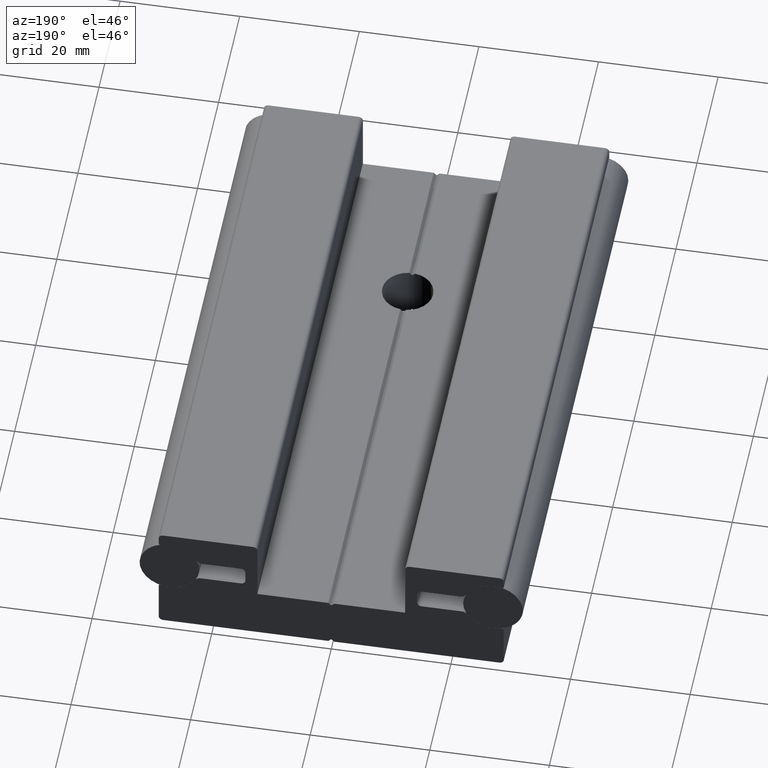
[diagram: clean part render]
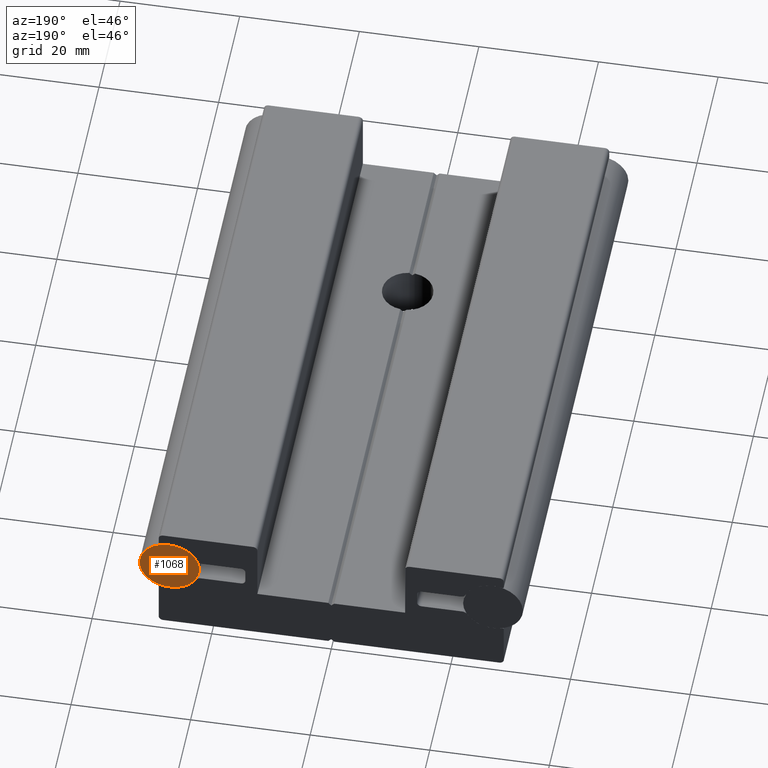
[diagram: same view with one face highlighted and labeled with its STEP entity id]
A machine part, auxiliary view. The second image highlights one B-rep face of the part: STEP entity #1068.
In plain terms, the highlighted planar face has unit normal (-0, -1, -0).
Its self-contained STEP definition (entity closure, byte-faithful):
#59=PLANE('',#1256);
#112=FACE_OUTER_BOUND('',#166,.T.);
#166=EDGE_LOOP('',(#987));
#411=CIRCLE('',#1257,5.);
#523=VERTEX_POINT('',#1910);
#678=EDGE_CURVE('',#523,#523,#411,.T.);
#987=ORIENTED_EDGE('',*,*,#678,.T.);
#1068=ADVANCED_FACE('',(#112),#59,.F.);
#1256=AXIS2_PLACEMENT_3D('',#1909,#1583,#1584);
#1257=AXIS2_PLACEMENT_3D('',#1911,#1585,#1586);
#1583=DIRECTION('center_axis',(0.,0.,1.));
#1584=DIRECTION('ref_axis',(1.,0.,0.));
#1585=DIRECTION('center_axis',(0.,0.,-1.));
#1586=DIRECTION('ref_axis',(-1.,0.,0.));
#1909=CARTESIAN_POINT('Origin',(-2.36064120735332E-16,9.25185853854297E-17,
-50.));
#1910=CARTESIAN_POINT('',(5.,6.12323399573677E-16,-50.));
#1911=CARTESIAN_POINT('Origin',(0.,0.,-50.));